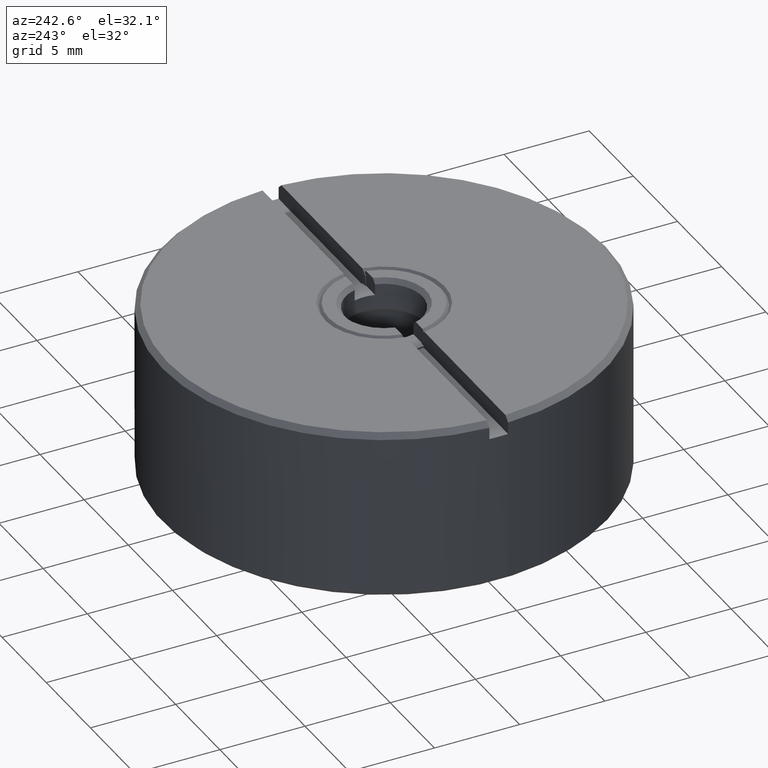
[diagram: clean part render]
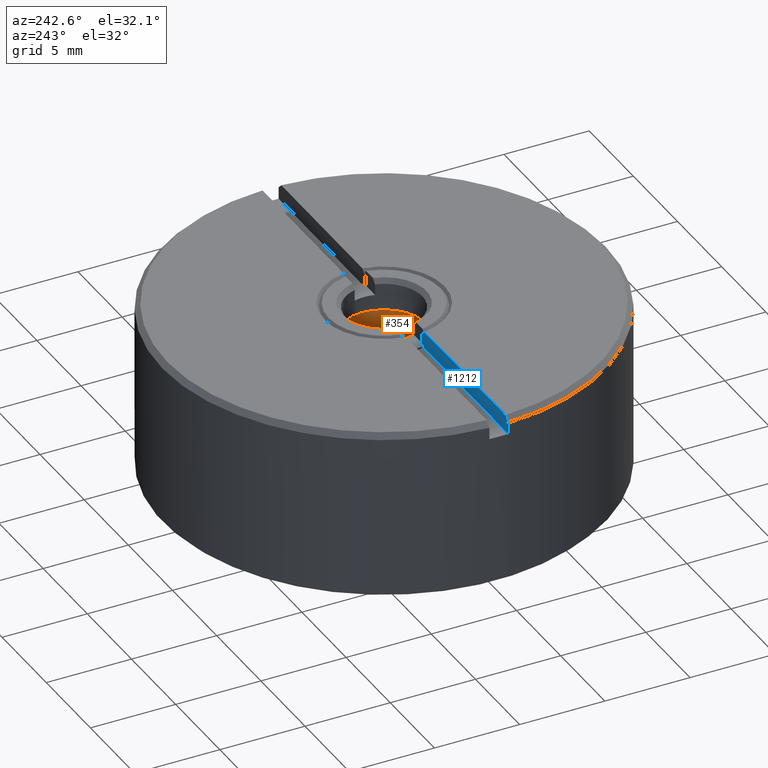
[diagram: same view with the hole feature highlighted: cylindrical wall and planar end face, labeled with their STEP entity ids]
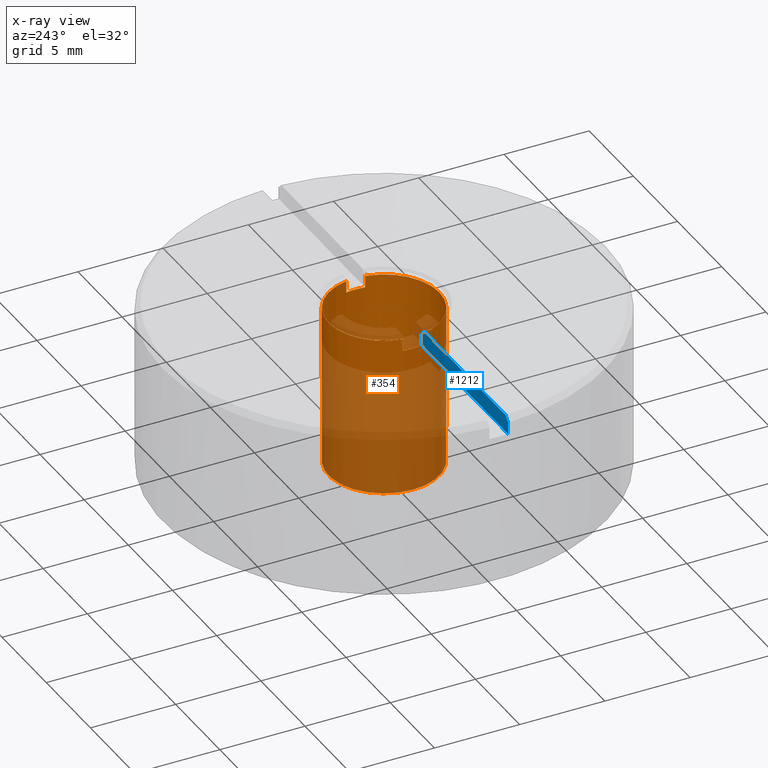
[diagram: x-ray of the same camera — body ghosted, the hole faces saturated]
A machine part, auxiliary view. The highlighted faces form one hole feature of diameter 6.5 mm: the cylindrical wall (entity #354, orange) and its adjacent planar end face (entity #1212, blue) — they share a circular edge in the B-rep.
The next image is the same camera in x-ray (body ghosted, the hole faces saturated) — the bore reads through the body.
Wall:
#64 = EDGE_CURVE ( 'NONE', #1169, #1169, #649, .T. ) ;
#78 = VERTEX_POINT ( 'NONE', #264 ) ;
#91 = DIRECTION ( 'NONE',  ( 0.000000000000000000, -0.000000000000000000, -1.000000000000000000 ) ) ;
#92 = ORIENTED_EDGE ( 'NONE', *, *, #1320, .F. ) ;
#118 = CARTESIAN_POINT ( 'NONE',  ( -3.203123475609394255, 0.5500000000000000444, 4.000000000000000888 ) ) ;
#123 = EDGE_LOOP ( 'NONE', ( #365, #675, #92, #1227, #1318, #1150, #1447, #1201 ) ) ;
#169 = CARTESIAN_POINT ( 'NONE',  ( 0.000000000000000000, 0.000000000000000000, -4.699999999957071850 ) ) ;
#183 = DIRECTION ( 'NONE',  ( -0.000000000000000000, 0.000000000000000000, 1.000000000000000000 ) ) ;
#237 = AXIS2_PLACEMENT_3D ( 'NONE', #835, #841, #942 ) ;
#252 = EDGE_CURVE ( 'NONE', #998, #664, #1588, .T. ) ;
#264 = CARTESIAN_POINT ( 'NONE',  ( 3.203123475609394255, 0.5500000000000000444, 4.000000000000000000 ) ) ;
#309 = CARTESIAN_POINT ( 'NONE',  ( 0.000000000000000000, 0.000000000000000000, 4.000000000000000888 ) ) ;
#322 = CARTESIAN_POINT ( 'NONE',  ( 3.203123475609394255, -0.5500000000000000444, 4.000000000000000000 ) ) ;
#354 = ADVANCED_FACE ( 'NONE', ( #1230, #378 ), #1580, .F. ) ;
#365 = ORIENTED_EDGE ( 'NONE', *, *, #627, .F. ) ;
#378 = FACE_OUTER_BOUND ( 'NONE', #1562, .T. ) ;
#424 = VERTEX_POINT ( 'NONE', #667 ) ;
#428 = CIRCLE ( 'NONE', #531, 3.250000000000000888 ) ;
#472 = VERTEX_POINT ( 'NONE', #658 ) ;
#523 = AXIS2_PLACEMENT_3D ( 'NONE', #746, #770, #1250 ) ;
#531 = AXIS2_PLACEMENT_3D ( 'NONE', #961, #1445, #1128 ) ;
#571 = DIRECTION ( 'NONE',  ( 1.000000000000000000, 0.000000000000000000, 0.000000000000000000 ) ) ;
#577 = DIRECTION ( 'NONE',  ( -0.000000000000000000, 0.000000000000000000, -1.000000000000000000 ) ) ;
#606 = ORIENTED_EDGE ( 'NONE', *, *, #64, .T. ) ;
#618 = EDGE_CURVE ( 'NONE', #1138, #664, #847, .T. ) ;
#627 = EDGE_CURVE ( 'NONE', #78, #1123, #917, .T. ) ;
#649 = CIRCLE ( 'NONE', #1609, 3.250000000036834535 ) ;
#658 = CARTESIAN_POINT ( 'NONE',  ( 3.203123475614452431, 0.5500000000000000444, 4.699999999993525357 ) ) ;
#664 = VERTEX_POINT ( 'NONE', #118 ) ;
#667 = CARTESIAN_POINT ( 'NONE',  ( 3.203123475609394255, -0.5500000000000000444, 4.699999999988540011 ) ) ;
#675 = ORIENTED_EDGE ( 'NONE', *, *, #1090, .T. ) ;
#677 = LINE ( 'NONE', #813, #765 ) ;
#746 = CARTESIAN_POINT ( 'NONE',  ( 0.000000000000000000, 0.000000000000000000, -5.000000000000000000 ) ) ;
#765 = VECTOR ( 'NONE', #908, 1000.000000000000000 ) ;
#770 = DIRECTION ( 'NONE',  ( -0.000000000000000000, -0.000000000000000000, 1.000000000000000000 ) ) ;
#806 = CARTESIAN_POINT ( 'NONE',  ( -3.203123475609394255, 0.5500000000000000444, 4.699999999988540011 ) ) ;
#813 = CARTESIAN_POINT ( 'NONE',  ( 3.203123475609394255, 0.5500000000000000444, 4.000000000000000000 ) ) ;
#814 = DIRECTION ( 'NONE',  ( 0.000000000000000000, 0.000000000000000000, -1.000000000000000000 ) ) ;
#824 = VECTOR ( 'NONE', #183, 1000.000000000000000 ) ;
#835 = CARTESIAN_POINT ( 'NONE',  ( 0.000000000000000000, 0.000000000000000000, 4.699999999999998401 ) ) ;
#841 = DIRECTION ( 'NONE',  ( 0.000000000000000000, 0.000000000000000000, -1.000000000000000000 ) ) ;
#847 = LINE ( 'NONE', #1304, #1220 ) ;
#871 = AXIS2_PLACEMENT_3D ( 'NONE', #309, #814, #1120 ) ;
#908 = DIRECTION ( 'NONE',  ( 0.000000000000000000, -0.000000000000000000, 1.000000000000000000 ) ) ;
#917 = CIRCLE ( 'NONE', #1350, 3.250000000000000888 ) ;
#942 = DIRECTION ( 'NONE',  ( 1.000000000000000000, 0.000000000000000000, 0.000000000000000000 ) ) ;
#955 = EDGE_CURVE ( 'NONE', #424, #1123, #1415, .T. ) ;
#959 = DIRECTION ( 'NONE',  ( 0.000000000000000000, 0.000000000000000000, -1.000000000000000000 ) ) ;
#961 = CARTESIAN_POINT ( 'NONE',  ( 0.000000000000000000, 0.000000000000000000, 4.699999999999998401 ) ) ;
#998 = VERTEX_POINT ( 'NONE', #1317 ) ;
#1012 = DIRECTION ( 'NONE',  ( -0.000000000000000000, -0.000000000000000000, -1.000000000000000000 ) ) ;
#1042 = CARTESIAN_POINT ( 'NONE',  ( 3.203123475609394255, -0.5500000000000000444, 4.000000000000000888 ) ) ;
#1090 = EDGE_CURVE ( 'NONE', #78, #472, #677, .T. ) ;
#1120 = DIRECTION ( 'NONE',  ( 1.000000000000000000, 4.440892098500626162E-15, 0.000000000000000000 ) ) ;
#1123 = VERTEX_POINT ( 'NONE', #1042 ) ;
#1128 = DIRECTION ( 'NONE',  ( 1.000000000000000000, 0.000000000000000000, 0.000000000000000000 ) ) ;
#1138 = VERTEX_POINT ( 'NONE', #806 ) ;
#1150 = ORIENTED_EDGE ( 'NONE', *, *, #1486, .T. ) ;
#1169 = VERTEX_POINT ( 'NONE', #1542 ) ;
#1186 = CARTESIAN_POINT ( 'NONE',  ( 0.000000000000000000, 0.000000000000000000, 4.000000000000000888 ) ) ;
#1201 = ORIENTED_EDGE ( 'NONE', *, *, #955, .T. ) ;
#1220 = VECTOR ( 'NONE', #577, 1000.000000000000000 ) ;
#1227 = ORIENTED_EDGE ( 'NONE', *, *, #618, .T. ) ;
#1230 = FACE_OUTER_BOUND ( 'NONE', #123, .T. ) ;
#1246 = DIRECTION ( 'NONE',  ( -1.000000000000000000, 0.000000000000000000, 0.000000000000000000 ) ) ;
#1250 = DIRECTION ( 'NONE',  ( 1.000000000000000000, 0.000000000000000000, 0.000000000000000000 ) ) ;
#1254 = EDGE_CURVE ( 'NONE', #424, #1603, #1482, .T. ) ;
#1300 = VECTOR ( 'NONE', #91, 1000.000000000000000 ) ;
#1304 = CARTESIAN_POINT ( 'NONE',  ( -3.203123475609394255, 0.5500000000000000444, 4.000000000000000000 ) ) ;
#1317 = CARTESIAN_POINT ( 'NONE',  ( -3.203123475609394255, -0.5500000000000000444, 4.000000000000000000 ) ) ;
#1318 = ORIENTED_EDGE ( 'NONE', *, *, #252, .F. ) ;
#1320 = EDGE_CURVE ( 'NONE', #1138, #472, #428, .T. ) ;
#1350 = AXIS2_PLACEMENT_3D ( 'NONE', #1186, #959, #571 ) ;
#1386 = LINE ( 'NONE', #1392, #824 ) ;
#1392 = CARTESIAN_POINT ( 'NONE',  ( -3.203123475609394255, -0.5500000000000000444, 4.000000000000000000 ) ) ;
#1415 = LINE ( 'NONE', #322, #1300 ) ;
#1418 = CARTESIAN_POINT ( 'NONE',  ( -3.203123475614452431, -0.5500000000000000444, 4.699999999993525357 ) ) ;
#1445 = DIRECTION ( 'NONE',  ( 0.000000000000000000, 0.000000000000000000, -1.000000000000000000 ) ) ;
#1447 = ORIENTED_EDGE ( 'NONE', *, *, #1254, .F. ) ;
#1482 = CIRCLE ( 'NONE', #237, 3.250000000000000888 ) ;
#1486 = EDGE_CURVE ( 'NONE', #998, #1603, #1386, .T. ) ;
#1542 = CARTESIAN_POINT ( 'NONE',  ( -3.250000000036834535, 0.000000000000000000, -4.699999999957071850 ) ) ;
#1562 = EDGE_LOOP ( 'NONE', ( #606 ) ) ;
#1580 = CYLINDRICAL_SURFACE ( 'NONE', #523, 3.250000000000000888 ) ;
#1588 = CIRCLE ( 'NONE', #871, 3.250000000000000888 ) ;
#1603 = VERTEX_POINT ( 'NONE', #1418 ) ;
#1609 = AXIS2_PLACEMENT_3D ( 'NONE', #169, #1012, #1246 ) ;
End face:
#51 = CARTESIAN_POINT ( 'NONE',  ( 0.000000000000000000, -0.5500000000000000444, 5.000000000000000000 ) ) ;
#54 = DIRECTION ( 'NONE',  ( 1.000000000000000000, 0.000000000000000000, 0.000000000000000000 ) ) ;
#66 = LINE ( 'NONE', #793, #85 ) ;
#85 = VECTOR ( 'NONE', #54, 1000.000000000000000 ) ;
#86 = FACE_OUTER_BOUND ( 'NONE', #1051, .T. ) ;
#94 = DIRECTION ( 'NONE',  ( 0.000000000000000000, -0.000000000000000000, -1.000000000000000000 ) ) ;
#111 = AXIS2_PLACEMENT_3D ( 'NONE', #1102, #1094, #94 ) ;
#140 = B_SPLINE_CURVE_WITH_KNOTS ( 'NONE', 3,
 ( #497, #505, #615, #1345 ),
 .UNSPECIFIED., .F., .F.,
 ( 4, 4 ),
 ( 2.453269466693398698E-18, 0.0004244587174157714912 ),
 .UNSPECIFIED. ) ;
#183 = DIRECTION ( 'NONE',  ( -0.000000000000000000, 0.000000000000000000, 1.000000000000000000 ) ) ;
#206 = ORIENTED_EDGE ( 'NONE', *, *, #761, .F. ) ;
#211 = VECTOR ( 'NONE', #1148, 1000.000000000000000 ) ;
#226 = B_SPLINE_CURVE_WITH_KNOTS ( 'NONE', 3,
 ( #268, #1335, #880, #752 ),
 .UNSPECIFIED., .F., .F.,
 ( 4, 4 ),
 ( 9.460639562318547315E-16, 0.0004271104794787447621 ),
 .UNSPECIFIED. ) ;
#265 = ORIENTED_EDGE ( 'NONE', *, *, #444, .F. ) ;
#268 = CARTESIAN_POINT ( 'NONE',  ( -3.203123475614452431, -0.5500000000000000444, 4.699999999993525357 ) ) ;
#316 = CARTESIAN_POINT ( 'NONE',  ( -12.98836017363239037, -0.5500000000000000444, 4.000000000000000000 ) ) ;
#364 = VERTEX_POINT ( 'NONE', #1505 ) ;
#391 = EDGE_CURVE ( 'NONE', #1603, #421, #226, .T. ) ;
#421 = VERTEX_POINT ( 'NONE', #1292 ) ;
#444 = EDGE_CURVE ( 'NONE', #364, #998, #66, .T. ) ;
#496 = VERTEX_POINT ( 'NONE', #686 ) ;
#497 = CARTESIAN_POINT ( 'NONE',  ( -12.68808496188450619, -0.5500000000000000444, 5.000000000000000888 ) ) ;
#505 = CARTESIAN_POINT ( 'NONE',  ( -12.78817778314701492, -0.5500000000000000444, 4.900001085019415115 ) ) ;
#538 = VERTEX_POINT ( 'NONE', #601 ) ;
#601 = CARTESIAN_POINT ( 'NONE',  ( -12.98836017363239037, -0.5500000000000000444, 4.699999999999988631 ) ) ;
#614 = ORIENTED_EDGE ( 'NONE', *, *, #1262, .F. ) ;
#615 = CARTESIAN_POINT ( 'NONE',  ( -12.88826949536930400, -0.5500000000000000444, 4.800001059946460202 ) ) ;
#686 = CARTESIAN_POINT ( 'NONE',  ( -12.68808496188450619, -0.5500000000000000444, 5.000000000000000888 ) ) ;
#752 = CARTESIAN_POINT ( 'NONE',  ( -3.507135583411575830, -0.5500000000000000444, 4.999999999981033838 ) ) ;
#761 = EDGE_CURVE ( 'NONE', #496, #538, #140, .T. ) ;
#793 = CARTESIAN_POINT ( 'NONE',  ( -12.98836017363239037, -0.5500000000000000444, 4.000000000000000000 ) ) ;
#824 = VECTOR ( 'NONE', #183, 1000.000000000000000 ) ;
#830 = EDGE_CURVE ( 'NONE', #421, #496, #1512, .T. ) ;
#880 = CARTESIAN_POINT ( 'NONE',  ( -3.405855079998163060, -0.5500000000000000444, 4.899942406360302094 ) ) ;
#924 = ORIENTED_EDGE ( 'NONE', *, *, #1486, .F. ) ;
#998 = VERTEX_POINT ( 'NONE', #1317 ) ;
#1051 = EDGE_LOOP ( 'NONE', ( #206, #1591, #1095, #924, #265, #614 ) ) ;
#1094 = DIRECTION ( 'NONE',  ( 0.000000000000000000, -1.000000000000000000, 0.000000000000000000 ) ) ;
#1095 = ORIENTED_EDGE ( 'NONE', *, *, #391, .F. ) ;
#1102 = CARTESIAN_POINT ( 'NONE',  ( -12.98836017363239037, -0.5500000000000000444, 4.000000000000000000 ) ) ;
#1148 = DIRECTION ( 'NONE',  ( -1.000000000000000000, -0.000000000000000000, 0.000000000000000000 ) ) ;
#1187 = LINE ( 'NONE', #316, #1226 ) ;
#1212 = ADVANCED_FACE ( 'NONE', ( #86 ), #1306, .F. ) ;
#1226 = VECTOR ( 'NONE', #1332, 1000.000000000000000 ) ;
#1262 = EDGE_CURVE ( 'NONE', #538, #364, #1187, .T. ) ;
#1292 = CARTESIAN_POINT ( 'NONE',  ( -3.507135583411575830, -0.5500000000000000444, 4.999999999981033838 ) ) ;
#1306 = PLANE ( 'NONE',  #111 ) ;
#1317 = CARTESIAN_POINT ( 'NONE',  ( -3.203123475609394255, -0.5500000000000000444, 4.000000000000000000 ) ) ;
#1332 = DIRECTION ( 'NONE',  ( 0.000000000000000000, -0.000000000000000000, -1.000000000000000000 ) ) ;
#1335 = CARTESIAN_POINT ( 'NONE',  ( -3.304522995395625440, -0.5500000000000000444, 4.799936979109785007 ) ) ;
#1345 = CARTESIAN_POINT ( 'NONE',  ( -12.98836017363239037, -0.5500000000000000444, 4.699999999999988631 ) ) ;
#1386 = LINE ( 'NONE', #1392, #824 ) ;
#1392 = CARTESIAN_POINT ( 'NONE',  ( -3.203123475609394255, -0.5500000000000000444, 4.000000000000000000 ) ) ;
#1418 = CARTESIAN_POINT ( 'NONE',  ( -3.203123475614452431, -0.5500000000000000444, 4.699999999993525357 ) ) ;
#1486 = EDGE_CURVE ( 'NONE', #998, #1603, #1386, .T. ) ;
#1505 = CARTESIAN_POINT ( 'NONE',  ( -12.98836017363239037, -0.5500000000000000444, 4.000000000000000000 ) ) ;
#1512 = LINE ( 'NONE', #51, #211 ) ;
#1591 = ORIENTED_EDGE ( 'NONE', *, *, #830, .F. ) ;
#1603 = VERTEX_POINT ( 'NONE', #1418 ) ;